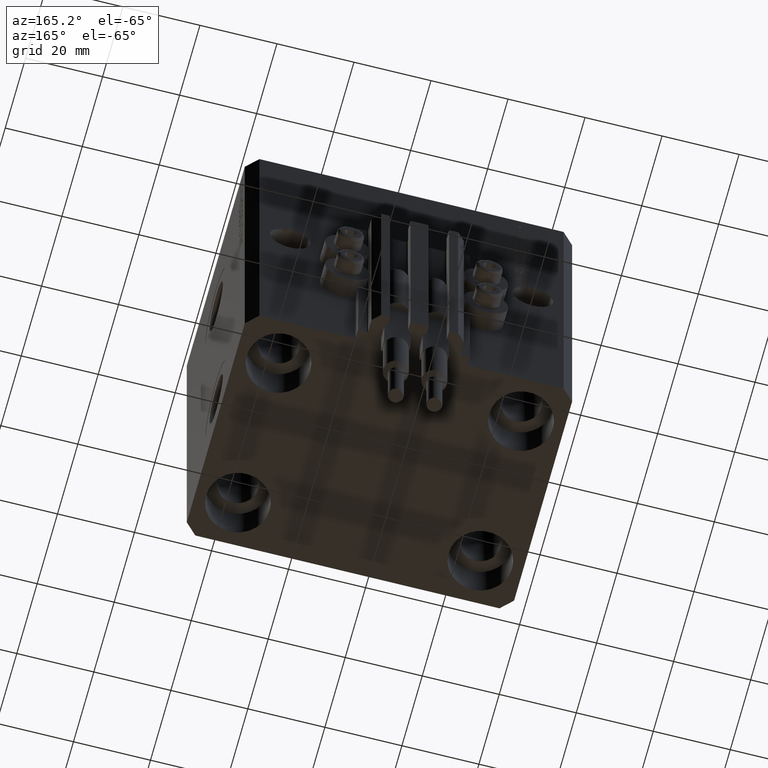
[diagram: clean part render]
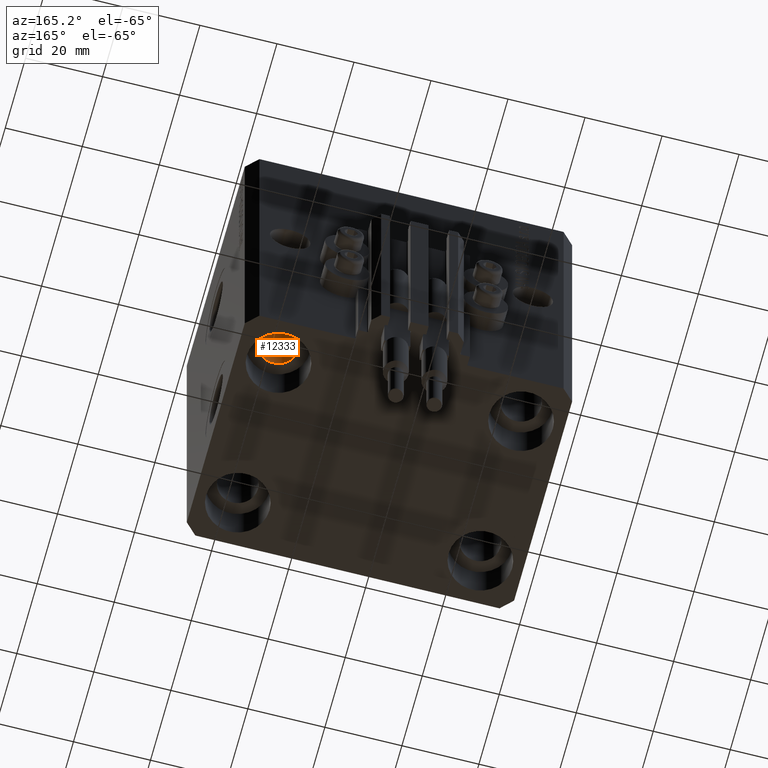
[diagram: same view with one face highlighted and labeled with its STEP entity id]
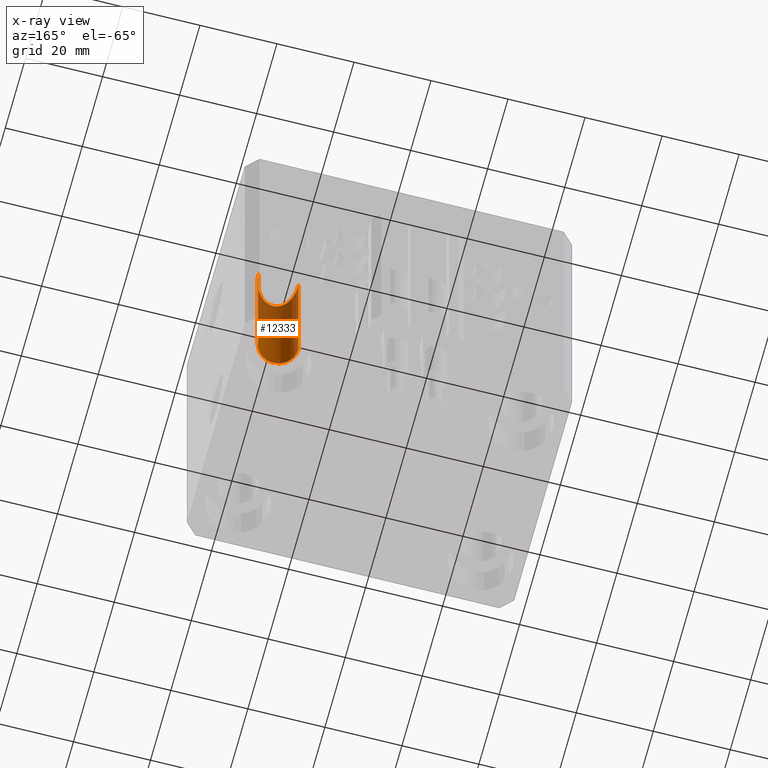
[diagram: x-ray of the same camera — body ghosted, the highlighted face saturated]
A machine part, auxiliary view. The second image highlights one B-rep face of the part: STEP entity #12333.
The next image is the same camera in x-ray: the body ghosted, the highlighted face saturated — about 59% of this face is hidden behind the body in this view.
In plain terms, the highlighted cylindrical surface (edge-blend (fillet) strip) has radius 5.25 mm, axis along (0, 0, 1).
Its self-contained STEP definition (entity closure, byte-faithful):
#1993 = CARTESIAN_POINT ( 'NONE',  ( 26.25000000000000355, 20.00000000000001066, -93.00000000000000000 ) ) ;
#2131 = CARTESIAN_POINT ( 'NONE',  ( 36.75000000000000711, 20.00000000000001066, -43.00000000000000000 ) ) ;
#3916 = CARTESIAN_POINT ( 'NONE',  ( 31.50000000000000000, 20.00000000000001066, -93.00000000000000000 ) ) ;
#5014 = VERTEX_POINT ( 'NONE', #25992 ) ;
#7487 = VECTOR ( 'NONE', #42811, 1000.000000000000000 ) ;
#7877 = DIRECTION ( 'NONE',  ( 1.000000000000000000, 0.000000000000000000, 0.000000000000000000 ) ) ;
#9651 = CIRCLE ( 'NONE', #23877, 5.249999999999997335 ) ;
#10089 = VERTEX_POINT ( 'NONE', #31585 ) ;
#10601 = EDGE_CURVE ( 'NONE', #5014, #14490, #9651, .T. ) ;
#12333 = ADVANCED_FACE ( 'NONE', ( #30380 ), #45473, .F. ) ;
#14490 = VERTEX_POINT ( 'NONE', #35987 ) ;
#17142 = EDGE_CURVE ( 'NONE', #5014, #27958, #29607, .T. ) ;
#18969 = EDGE_CURVE ( 'NONE', #14490, #10089, #20554, .T. ) ;
#19728 = CARTESIAN_POINT ( 'NONE',  ( 31.50000000000000000, 20.00000000000001066, -82.00000000000000000 ) ) ;
#19970 = DIRECTION ( 'NONE',  ( -1.000000000000000000, 0.000000000000000000, 0.000000000000000000 ) ) ;
#20203 = EDGE_LOOP ( 'NONE', ( #39860, #47772, #32336, #44023 ) ) ;
#20554 = LINE ( 'NONE', #1993, #7487 ) ;
#22546 = CARTESIAN_POINT ( 'NONE',  ( 26.25000000000001066, 20.00000000000001066, -43.00000000000000000 ) ) ;
#23877 = AXIS2_PLACEMENT_3D ( 'NONE', #19728, #34788, #19970 ) ;
#25292 = CARTESIAN_POINT ( 'NONE',  ( 36.75000000000000000, 9.500000000000023093, -53.49999999999999289 ) ) ;
#25992 = CARTESIAN_POINT ( 'NONE',  ( 36.75000000000000000, 20.00000000000001066, -82.00000000000000000 ) ) ;
#26017 = CARTESIAN_POINT ( 'NONE',  ( 36.75000000000000711, 20.00000000000001066, -43.00000000000000000 ) ) ;
#27958 = VERTEX_POINT ( 'NONE', #2131 ) ;
#29128 = CARTESIAN_POINT ( 'NONE',  ( 36.75000000000000000, 20.00000000000001066, -93.00000000000000000 ) ) ;
#29520 = VECTOR ( 'NONE', #44213, 1000.000000000000000 ) ;
#29607 = LINE ( 'NONE', #29128, #29520 ) ;
#30380 = FACE_OUTER_BOUND ( 'NONE', #20203, .T. ) ;
#31524 =( BOUNDED_CURVE ( )  B_SPLINE_CURVE ( 3, ( #22546, #40847, #25292, #26017 ),
 .UNSPECIFIED., .F., .F. ) 
 B_SPLINE_CURVE_WITH_KNOTS ( ( 4, 4 ),
 ( 1.570796326794896558, 4.712388980384689674 ),
 .UNSPECIFIED. ) 
 CURVE ( )  GEOMETRIC_REPRESENTATION_ITEM ( )  RATIONAL_B_SPLINE_CURVE ( ( 1.000000000000000000, 0.3333333333333333703, 0.3333333333333333703, 1.000000000000000000 ) ) 
 REPRESENTATION_ITEM ( '' )  );
#31585 = CARTESIAN_POINT ( 'NONE',  ( 26.25000000000001066, 20.00000000000001066, -43.00000000000000000 ) ) ;
#32336 = ORIENTED_EDGE ( 'NONE', *, *, #40676, .T. ) ;
#34788 = DIRECTION ( 'NONE',  ( 0.000000000000000000, 0.000000000000000000, -1.000000000000000000 ) ) ;
#35987 = CARTESIAN_POINT ( 'NONE',  ( 26.25000000000000355, 20.00000000000001066, -82.00000000000000000 ) ) ;
#37350 = AXIS2_PLACEMENT_3D ( 'NONE', #3916, #41748, #7877 ) ;
#39860 = ORIENTED_EDGE ( 'NONE', *, *, #10601, .T. ) ;
#40676 = EDGE_CURVE ( 'NONE', #10089, #27958, #31524, .T. ) ;
#40847 = CARTESIAN_POINT ( 'NONE',  ( 26.25000000000001776, 9.500000000000023093, -53.49999999999999289 ) ) ;
#41748 = DIRECTION ( 'NONE',  ( -0.000000000000000000, -0.000000000000000000, 1.000000000000000000 ) ) ;
#42811 = DIRECTION ( 'NONE',  ( -0.000000000000000000, -0.000000000000000000, 1.000000000000000000 ) ) ;
#44023 = ORIENTED_EDGE ( 'NONE', *, *, #17142, .F. ) ;
#44213 = DIRECTION ( 'NONE',  ( -0.000000000000000000, -0.000000000000000000, 1.000000000000000000 ) ) ;
#45473 = CYLINDRICAL_SURFACE ( 'NONE', #37350, 5.249999999999997335 ) ;
#47772 = ORIENTED_EDGE ( 'NONE', *, *, #18969, .T. ) ;